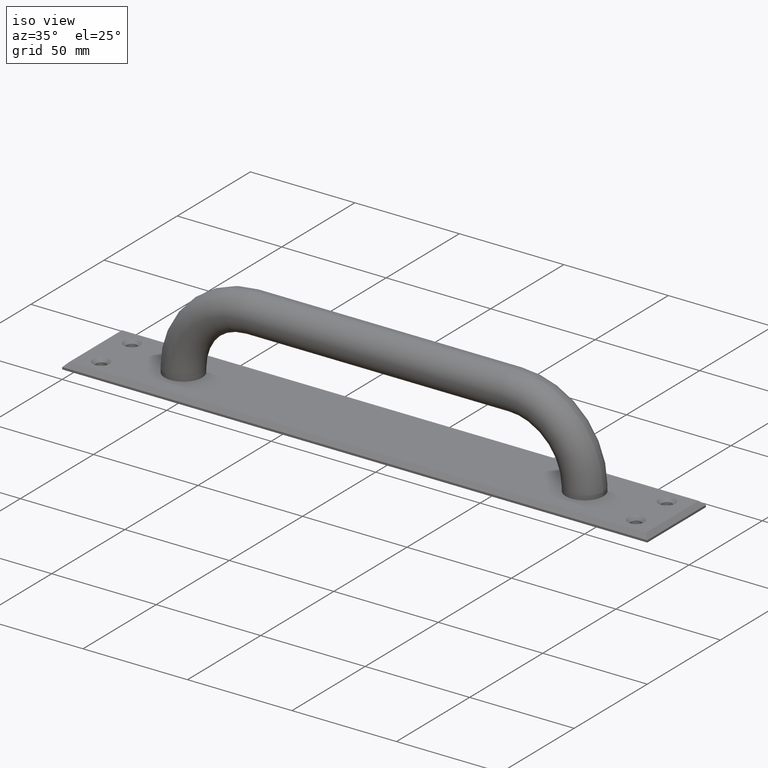
[diagram: clean part render]
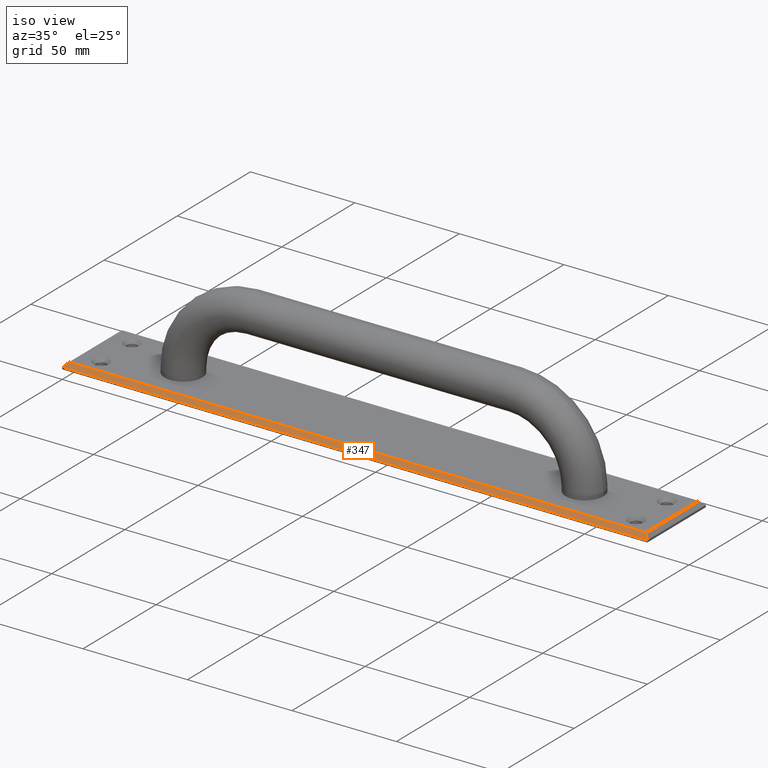
[diagram: same view with one face highlighted and labeled with its STEP entity id]
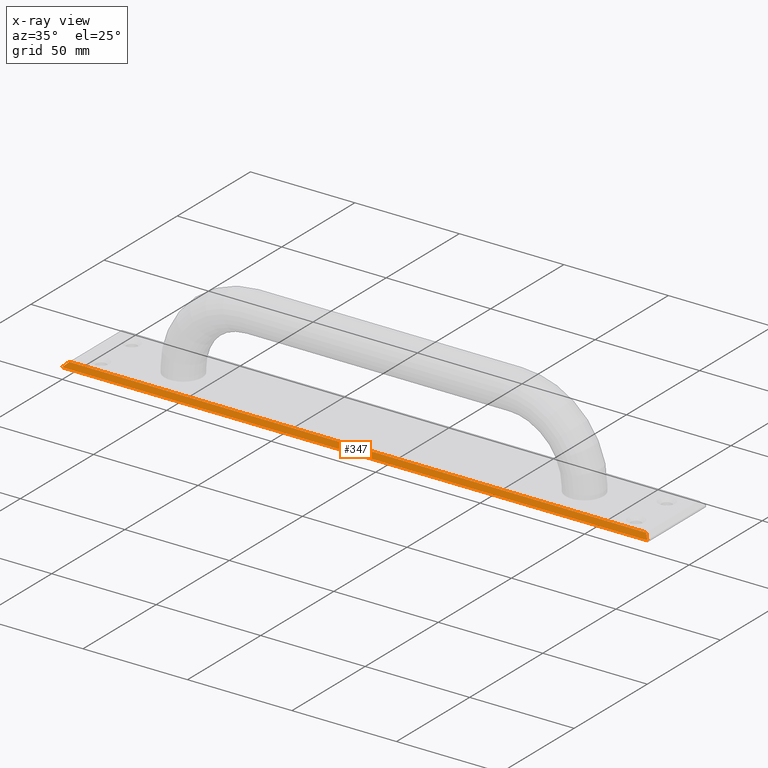
[diagram: x-ray of the same camera — body ghosted, the highlighted face saturated]
A machine part, iso view. The second image highlights one B-rep face of the part: STEP entity #347.
The next image is the same camera in x-ray: the body ghosted, the highlighted face saturated — about 0% of this face is hidden behind the body in this view.
In plain terms, the highlighted planar face has unit normal (0, -0.7071, 0.7071).
Its self-contained STEP definition (entity closure, byte-faithful):
#15=LINE('',#555,#35);
#19=LINE('',#563,#39);
#22=LINE('',#569,#42);
#23=LINE('',#570,#43);
#35=VECTOR('',#464,3.46410161513775);
#39=VECTOR('',#470,276.);
#42=VECTOR('',#475,280.);
#43=VECTOR('',#476,3.46410161513773);
#57=PLANE('',#390);
#109=FACE_OUTER_BOUND('',#151,.T.);
#151=EDGE_LOOP('',(#289,#290,#291,#292));
#199=VERTEX_POINT('',#553);
#200=VERTEX_POINT('',#554);
#203=VERTEX_POINT('',#562);
#205=VERTEX_POINT('',#568);
#229=EDGE_CURVE('',#199,#200,#15,.T.);
#233=EDGE_CURVE('',#203,#200,#19,.T.);
#236=EDGE_CURVE('',#199,#205,#22,.T.);
#237=EDGE_CURVE('',#203,#205,#23,.T.);
#289=ORIENTED_EDGE('',*,*,#229,.F.);
#290=ORIENTED_EDGE('',*,*,#236,.T.);
#291=ORIENTED_EDGE('',*,*,#237,.F.);
#292=ORIENTED_EDGE('',*,*,#233,.T.);
#347=ADVANCED_FACE('',(#109),#57,.T.);
#390=AXIS2_PLACEMENT_3D('',#567,#473,#474);
#464=DIRECTION('',(0.577350269189625,0.577350269189626,0.577350269189627));
#470=DIRECTION('',(-1.,-1.40868018789466E-32,0.));
#473=DIRECTION('center_axis',(9.96087313383457E-33,-0.707106781186548,0.707106781186547));
#474=DIRECTION('ref_axis',(1.,0.,0.));
#475=DIRECTION('',(1.,1.40868018789466E-32,0.));
#476=DIRECTION('',(0.577350269189625,-0.577350269189626,-0.577350269189627));
#553=CARTESIAN_POINT('',(0.,0.,1.));
#554=CARTESIAN_POINT('',(1.99999999999999,2.,3.));
#555=CARTESIAN_POINT('',(17.3333333333333,17.3333333333333,18.3333333333333));
#562=CARTESIAN_POINT('',(278.,2.,3.));
#563=CARTESIAN_POINT('',(70.,2.,3.));
#567=CARTESIAN_POINT('Origin',(70.,1.,2.));
#568=CARTESIAN_POINT('',(280.,3.94430452610506E-30,1.));
#569=CARTESIAN_POINT('',(70.,0.,1.));
#570=CARTESIAN_POINT('',(242.666666666667,37.3333333333333,38.3333333333333));